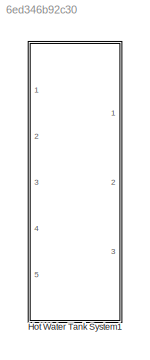
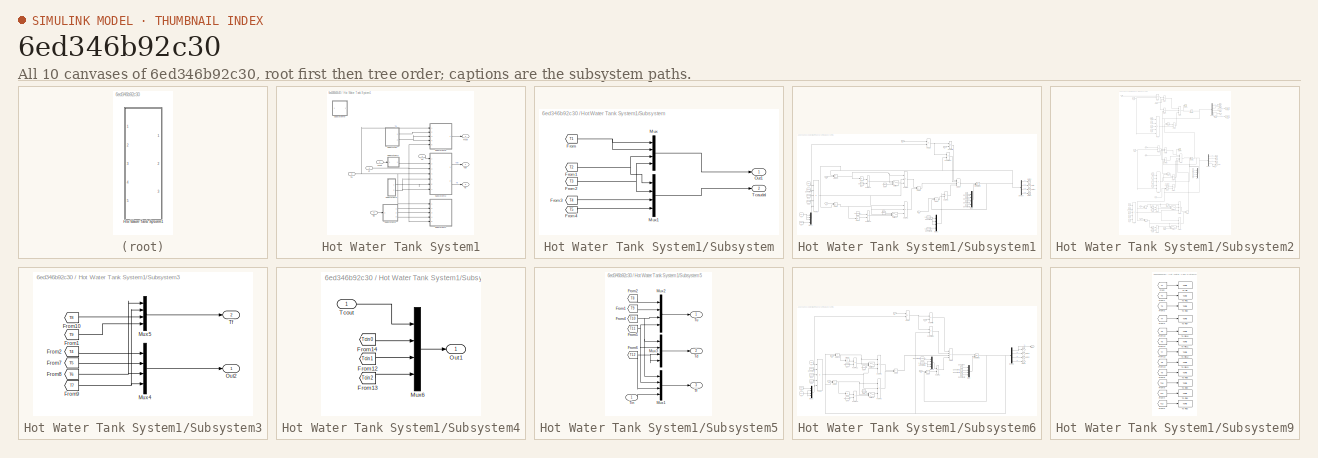
[diagram: thumbnail index - all 10 canvases of the model, root first then tree order]
MODEL slx_6ed346b92c30
KIND model
CONFIG AbsTol = auto
CONFIG EnableMultiTasking = off
CONFIG FixedStep = auto
CONFIG MaxStep = auto
CONFIG MinStep = auto
CONFIG RelTol = 1e-3
CONFIG SampleTimeConstraint = Unconstrained
CONFIG Solver = VariableStepAuto
CONFIG SolverName = VariableStepAuto
CONFIG StartTime = 0.0
CONFIG StopTime = 10.0
BLOCK [SubSystem] Hot Water Tank System1
  Ports = [5, 3]
  RequestExecContextInheritance = off
BLOCK [Inport] Hot Water Tank System1/Fc 
BLOCK [Inport] Hot Water Tank System1/Ft
  Port = 4
BLOCK [SubSystem] Hot Water Tank System1/Subsystem
  Ports = [0, 2]
  RequestExecContextInheritance = off
BLOCK [From] Hot Water Tank System1/Subsystem/From
  GotoTag = T1
  TagVisibility = global
BLOCK [From] Hot Water Tank System1/Subsystem/From1
  GotoTag = T2
  TagVisibility = global
BLOCK [From] Hot Water Tank System1/Subsystem/From2
  GotoTag = T3
  TagVisibility = global
BLOCK [From] Hot Water Tank System1/Subsystem/From3
  GotoTag = T4
  TagVisibility = global
BLOCK [From] Hot Water Tank System1/Subsystem/From4
  GotoTag = T5
  TagVisibility = global
BLOCK [Mux] Hot Water Tank System1/Subsystem/Mux
  DisplayOption = bar
  Ports = [4, 1]
BLOCK [Mux] Hot Water Tank System1/Subsystem/Mux1
  DisplayOption = bar
  Ports = [4, 1]
BLOCK [Outport] Hot Water Tank System1/Subsystem/Out1
BLOCK [Outport] Hot Water Tank System1/Subsystem/Tcaudal 
  Port = 2
BLOCK [SubSystem] Hot Water Tank System1/Subsystem1
  Ports = [5]
  RequestExecContextInheritance = off
BLOCK [Constant] Hot Water Tank System1/Subsystem1/A3
  Value = 0.32
BLOCK [Abs] Hot Water Tank System1/Subsystem1/Abs3
  SaturateOnIntegerOverflow = off
  ZeroCross = off
BLOCK [Abs] Hot Water Tank System1/Subsystem1/Abs4
  SaturateOnIntegerOverflow = off
  ZeroCross = off
BLOCK [Sum] Hot Water Tank System1/Subsystem1/Add10
  IconShape = rectangular
  Inputs = -+
  Ports = [2, 1]
BLOCK [Sum] Hot Water Tank System1/Subsystem1/Add3
  IconShape = rectangular
  Inputs = +-+-
  Ports = [4, 1]
BLOCK [Sum] Hot Water Tank System1/Subsystem1/Add4
  IconShape = rectangular
  Inputs = -+
  Ports = [2, 1]
BLOCK [Sum] Hot Water Tank System1/Subsystem1/Add8
  IconShape = rectangular
  Ports = [2, 1]
BLOCK [Sum] Hot Water Tank System1/Subsystem1/Add9
  IconShape = rectangular
  Inputs = +-
  Ports = [2, 1]
BLOCK [Constant] Hot Water Tank System1/Subsystem1/Constant
  Value = 19.9
BLOCK [Constant] Hot Water Tank System1/Subsystem1/Constant1
  Value = 19.6
BLOCK [Constant] Hot Water Tank System1/Subsystem1/Constant2
  Value = U_loss*3600*A_tank/(1000*4180*0.04)
BLOCK [Constant] Hot Water Tank System1/Subsystem1/Constant3
  Value = 19.5
BLOCK [Constant] Hot Water Tank System1/Subsystem1/Constant4
  Value = 1.5/12
BLOCK [Constant] Hot Water Tank System1/Subsystem1/Constant5
  Value = 21.2
BLOCK [Constant] Hot Water Tank System1/Subsystem1/Constant6
  Value = U_loss*3600*A_tank/(1000*4180*0.057)
BLOCK [Demux] Hot Water Tank System1/Subsystem1/Demux
  Ports = [1, 4]
BLOCK [Product] Hot Water Tank System1/Subsystem1/Fc//V*T10
  Inputs = **
  Ports = [2, 1]
BLOCK [Product] Hot Water Tank System1/Subsystem1/Fc//V*T11
  Inputs = **
  Ports = [2, 1]
BLOCK [Product] Hot Water Tank System1/Subsystem1/Fc//V*T2
  Inputs = **
  Ports = [2, 1]
BLOCK [Product] Hot Water Tank System1/Subsystem1/Fc//V*T3
  Inputs = ***
  Ports = [3, 1]
BLOCK [Product] Hot Water Tank System1/Subsystem1/Fc//V*T9
  Inputs = ***
  Ports = [3, 1]
BLOCK [Product] Hot Water Tank System1/Subsystem1/Fc//V*Ttin
  Inputs = **
  Ports = [2, 1]
BLOCK [Product] Hot Water Tank System1/Subsystem1/Fc//V*Ttout
  Inputs = **
  Ports = [2, 1]
BLOCK [Product] Hot Water Tank System1/Subsystem1/Fc//V1
  Inputs = *////
  Ports = [5, 1]
BLOCK [Product] Hot Water Tank System1/Subsystem1/Fc//V2
  Inputs = */
  Ports = [2, 1]
BLOCK [Inport] Hot Water Tank System1/Subsystem1/Ft
  Port = 5
BLOCK [Goto] Hot Water Tank System1/Subsystem1/Goto
  GotoTag = T10
  TagVisibility = global
BLOCK [Goto] Hot Water Tank System1/Subsystem1/Goto1
  GotoTag = T11
  TagVisibility = global
BLOCK [Goto] Hot Water Tank System1/Subsystem1/Goto2
  GotoTag = T12
  TagVisibility = global
BLOCK [Goto] Hot Water Tank System1/Subsystem1/Goto3
  GotoTag = T9
  TagVisibility = global
BLOCK [Integrator] Hot Water Tank System1/Subsystem1/Integrator1
  InitialCondition = 55.1
  InitialConditionSource = external
  Ports = [2, 1]
BLOCK [Mux] Hot Water Tank System1/Subsystem1/Mux
  DisplayOption = bar
  Ports = [4, 1]
BLOCK [Mux] Hot Water Tank System1/Subsystem1/Mux1
  DisplayOption = bar
  Ports = [4, 1]
BLOCK [Mux] Hot Water Tank System1/Subsystem1/Mux2
  DisplayOption = bar
  Ports = [4, 1]
BLOCK [Switch] Hot Water Tank System1/Subsystem1/Switch3
  Criteria = u2 > Threshold
  InputSameDT = off
  SaturateOnIntegerOverflow = off
  ZeroCross = off
BLOCK [Switch] Hot Water Tank System1/Subsystem1/Switch4
  Criteria = u2 > Threshold
  InputSameDT = off
  SaturateOnIntegerOverflow = off
  ZeroCross = off
BLOCK [Inport] Hot Water Tank System1/Subsystem1/Ta
BLOCK [Inport] Hot Water Tank System1/Subsystem1/Td
  Port = 3
BLOCK [Inport] Hot Water Tank System1/Subsystem1/Tf 
  Port = 4
BLOCK [Inport] Hot Water Tank System1/Subsystem1/Tu
  Port = 2
BLOCK [Constant] Hot Water Tank System1/Subsystem1/Us    5
  Value = 0.6*3600
BLOCK [Constant] Hot Water Tank System1/Subsystem1/Us    6
  Value = 0.6*3600*delt
BLOCK [Constant] Hot Water Tank System1/Subsystem1/Us    7
  Value = 0.6*3600*delt
BLOCK [Constant] Hot Water Tank System1/Subsystem1/Us    8
  Value = 0.6*3600
BLOCK [Constant] Hot Water Tank System1/Subsystem1/V1
  Value = 0.04
BLOCK [Constant] Hot Water Tank System1/Subsystem1/V4
  Value = 0.057
BLOCK [Constant] Hot Water Tank System1/Subsystem1/cp3
  Value = 4180
BLOCK [Constant] Hot Water Tank System1/Subsystem1/rho3
  Value = 1000
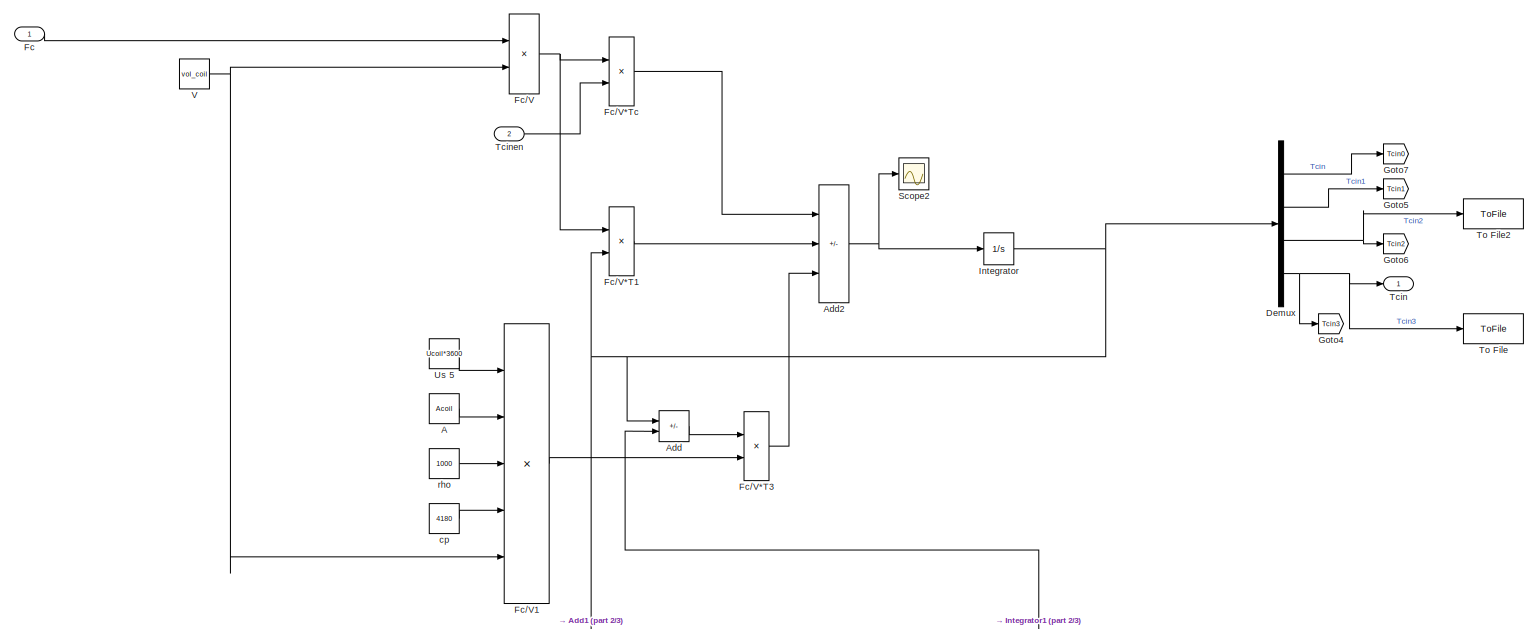
[diagram: Hot Water Tank System1/Subsystem2 - part 1/3, full width, top band]
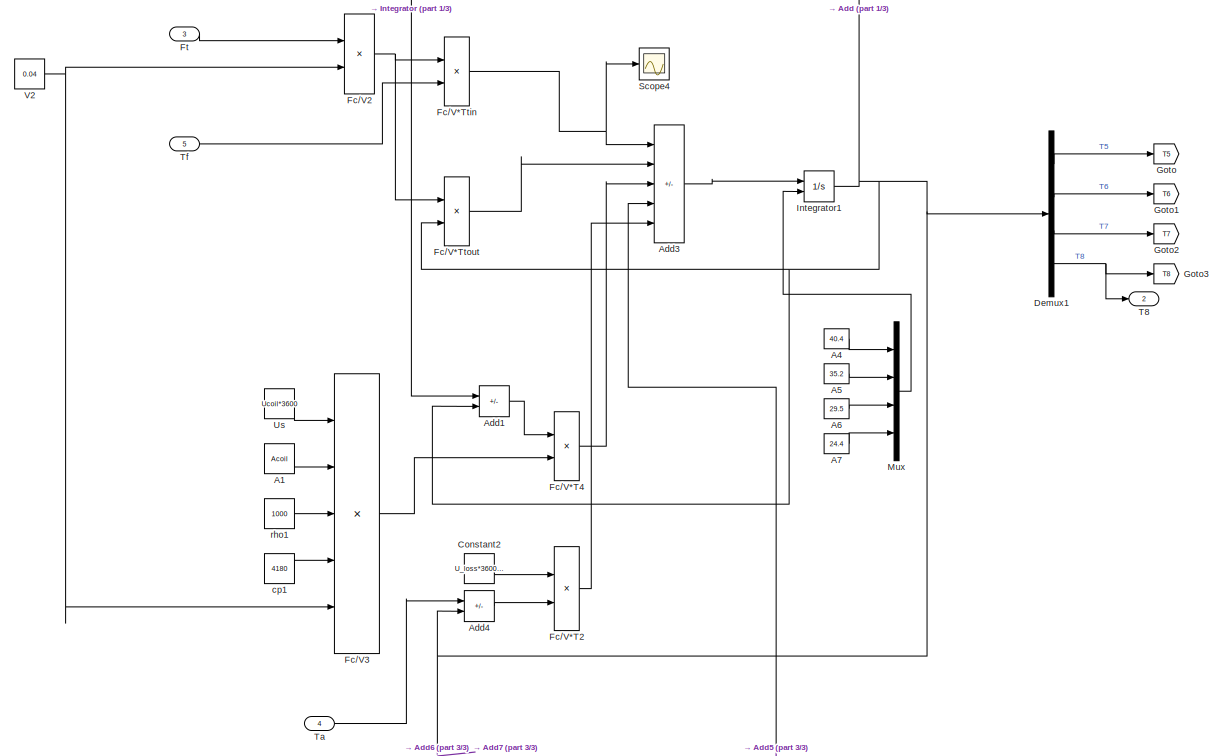
[diagram: Hot Water Tank System1/Subsystem2 - part 2/3, full width, middle band]
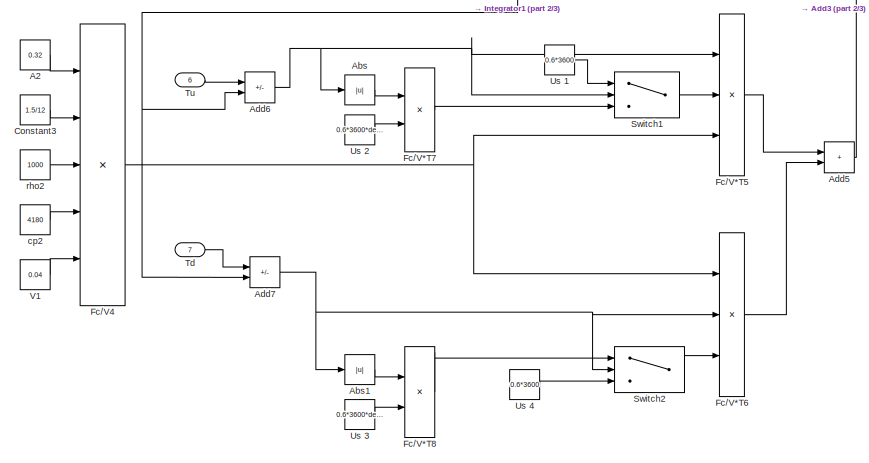
[diagram: Hot Water Tank System1/Subsystem2 - part 3/3, bottom center region]
BLOCK [SubSystem] Hot Water Tank System1/Subsystem2
  Ports = [7, 2]
  RequestExecContextInheritance = off
BLOCK [Constant] Hot Water Tank System1/Subsystem2/A
  Value = Acoil
BLOCK [Constant] Hot Water Tank System1/Subsystem2/A1
  Value = Acoil
BLOCK [Constant] Hot Water Tank System1/Subsystem2/A2
  Value = 0.32
BLOCK [Constant] Hot Water Tank System1/Subsystem2/A4
  Value = 40.4
BLOCK [Constant] Hot Water Tank System1/Subsystem2/A5
  Value = 35.2
BLOCK [Constant] Hot Water Tank System1/Subsystem2/A6
  Value = 29.5
BLOCK [Constant] Hot Water Tank System1/Subsystem2/A7
  Value = 24.4
BLOCK [Abs] Hot Water Tank System1/Subsystem2/Abs
  SaturateOnIntegerOverflow = off
  ZeroCross = off
BLOCK [Abs] Hot Water Tank System1/Subsystem2/Abs1
  SaturateOnIntegerOverflow = off
  ZeroCross = off
BLOCK [Sum] Hot Water Tank System1/Subsystem2/Add
  IconShape = rectangular
  Inputs = +-
  Ports = [2, 1]
BLOCK [Sum] Hot Water Tank System1/Subsystem2/Add1
  IconShape = rectangular
  Inputs = -+
  Ports = [2, 1]
BLOCK [Sum] Hot Water Tank System1/Subsystem2/Add2
  IconShape = rectangular
  Inputs = +--
  Ports = [3, 1]
BLOCK [Sum] Hot Water Tank System1/Subsystem2/Add3
  IconShape = rectangular
  Inputs = +--+-
  Ports = [5, 1]
BLOCK [Sum] Hot Water Tank System1/Subsystem2/Add4
  IconShape = rectangular
  Inputs = -+
  Ports = [2, 1]
BLOCK [Sum] Hot Water Tank System1/Subsystem2/Add5
  IconShape = rectangular
  Ports = [2, 1]
BLOCK [Sum] Hot Water Tank System1/Subsystem2/Add6
  IconShape = rectangular
  Inputs = +-
  Ports = [2, 1]
BLOCK [Sum] Hot Water Tank System1/Subsystem2/Add7
  IconShape = rectangular
  Inputs = +-
  Ports = [2, 1]
BLOCK [Constant] Hot Water Tank System1/Subsystem2/Constant2
  Value = U_loss*3600*A_tank/(1000*4180*0.04)
BLOCK [Constant] Hot Water Tank System1/Subsystem2/Constant3
  Value = 1.5/12
BLOCK [Demux] Hot Water Tank System1/Subsystem2/Demux
  Ports = [1, 4]
BLOCK [Demux] Hot Water Tank System1/Subsystem2/Demux1
  Ports = [1, 4]
BLOCK [Inport] Hot Water Tank System1/Subsystem2/Fc 
BLOCK [Product] Hot Water Tank System1/Subsystem2/Fc//V
  Inputs = */
  Ports = [2, 1]
BLOCK [Product] Hot Water Tank System1/Subsystem2/Fc//V*T1
  Inputs = **
  Ports = [2, 1]
BLOCK [Product] Hot Water Tank System1/Subsystem2/Fc//V*T2
  Inputs = **
  Ports = [2, 1]
BLOCK [Product] Hot Water Tank System1/Subsystem2/Fc//V*T3
  Inputs = **
  Ports = [2, 1]
BLOCK [Product] Hot Water Tank System1/Subsystem2/Fc//V*T4
  Inputs = **
  Ports = [2, 1]
BLOCK [Product] Hot Water Tank System1/Subsystem2/Fc//V*T5
  Inputs = ***
  Ports = [3, 1]
BLOCK [Product] Hot Water Tank System1/Subsystem2/Fc//V*T6
  Inputs = ***
  Ports = [3, 1]
BLOCK [Product] Hot Water Tank System1/Subsystem2/Fc//V*T7
  Inputs = **
  Ports = [2, 1]
BLOCK [Product] Hot Water Tank System1/Subsystem2/Fc//V*T8
  Inputs = **
  Ports = [2, 1]
BLOCK [Product] Hot Water Tank System1/Subsystem2/Fc//V*Tc
  Inputs = **
  Ports = [2, 1]
BLOCK [Product] Hot Water Tank System1/Subsystem2/Fc//V*Ttin
  Inputs = **
  Ports = [2, 1]
BLOCK [Product] Hot Water Tank System1/Subsystem2/Fc//V*Ttout
  Inputs = **
  Ports = [2, 1]
BLOCK [Product] Hot Water Tank System1/Subsystem2/Fc//V1
  Inputs = **///
  Ports = [5, 1]
BLOCK [Product] Hot Water Tank System1/Subsystem2/Fc//V2
  Inputs = */
  Ports = [2, 1]
BLOCK [Product] Hot Water Tank System1/Subsystem2/Fc//V3
  Inputs = **///
  Ports = [5, 1]
BLOCK [Product] Hot Water Tank System1/Subsystem2/Fc//V4
  Inputs = *////
  Ports = [5, 1]
BLOCK [Inport] Hot Water Tank System1/Subsystem2/Ft
  Port = 3
BLOCK [Goto] Hot Water Tank System1/Subsystem2/Goto
  GotoTag = T5
  TagVisibility = global
BLOCK [Goto] Hot Water Tank System1/Subsystem2/Goto1
  GotoTag = T6
  TagVisibility = global
BLOCK [Goto] Hot Water Tank System1/Subsystem2/Goto2
  GotoTag = T7
  TagVisibility = global
BLOCK [Goto] Hot Water Tank System1/Subsystem2/Goto3
  GotoTag = T8
  TagVisibility = global
BLOCK [Goto] Hot Water Tank System1/Subsystem2/Goto4
  GotoTag = Tcin3
  TagVisibility = global
BLOCK [Goto] Hot Water Tank System1/Subsystem2/Goto5
  GotoTag = Tcin1
  TagVisibility = global
BLOCK [Goto] Hot Water Tank System1/Subsystem2/Goto6
  GotoTag = Tcin2
  TagVisibility = global
BLOCK [Goto] Hot Water Tank System1/Subsystem2/Goto7
  GotoTag = Tcin0
  TagVisibility = global
BLOCK [Integrator] Hot Water Tank System1/Subsystem2/Integrator
  InitialCondition = 25.7
  Ports = [1, 1]
BLOCK [Integrator] Hot Water Tank System1/Subsystem2/Integrator1
  InitialCondition = 42.7
  InitialConditionSource = external
  Ports = [2, 1]
BLOCK [Mux] Hot Water Tank System1/Subsystem2/Mux
  DisplayOption = bar
  Ports = [4, 1]
BLOCK [Scope] Hot Water Tank System1/Subsystem2/Scope2
  Floating = off
  NumInputPorts = 1
  Ports = [1]
  ScopeSpecificationString = Simulink.scopes.TimeScopeBlockCfg('CurrentConfiguration', extmgr.ConfigurationSet(extmgr.Configuration('Core','General UI',true),extmgr.Configuration('Core','Source UI',true),extmgr.Configuration('Sources','WiredSimulink',true,'DataLoggingVariableName','ScopeData1'),extmgr.Configuration('Visuals','Time Domain',true,'SerializedDisplays',{struct('MinYLimReal','-653.65523','MaxYLimReal','818.78226','...<+1479ch>
BLOCK [Scope] Hot Water Tank System1/Subsystem2/Scope4
  Floating = off
  NumInputPorts = 1
  Ports = [1]
  ScopeSpecificationString = Simulink.scopes.TimeScopeBlockCfg('CurrentConfiguration', extmgr.ConfigurationSet(extmgr.Configuration('Core','General UI',true),extmgr.Configuration('Core','Source UI',true),extmgr.Configuration('Sources','WiredSimulink',true,'DataLoggingVariableName','ScopeData1'),extmgr.Configuration('Visuals','Time Domain',true,'SerializedDisplays',{struct('MinYLimReal','-4.39511','MaxYLimReal','39.55597','YLa...<+1489ch>
BLOCK [Switch] Hot Water Tank System1/Subsystem2/Switch1
  Criteria = u2 > Threshold
  InputSameDT = off
  SaturateOnIntegerOverflow = off
  ZeroCross = off
BLOCK [Switch] Hot Water Tank System1/Subsystem2/Switch2
  Criteria = u2 > Threshold
  InputSameDT = off
  SaturateOnIntegerOverflow = off
  ZeroCross = off
BLOCK [Outport] Hot Water Tank System1/Subsystem2/T8
  Port = 2
BLOCK [Inport] Hot Water Tank System1/Subsystem2/Ta
  Port = 4
BLOCK [Outport] Hot Water Tank System1/Subsystem2/Tcin
BLOCK [Inport] Hot Water Tank System1/Subsystem2/Tcinen 
  Port = 2
BLOCK [Inport] Hot Water Tank System1/Subsystem2/Td
  Port = 7
BLOCK [Inport] Hot Water Tank System1/Subsystem2/Tf 
  Port = 5
BLOCK [ToFile] Hot Water Tank System1/Subsystem2/To File
  Filename = Tcin_ex.mat
  MatrixName = Tcin_ex
  Ports = [1]
  SampleTime = 1
BLOCK [ToFile] Hot Water Tank System1/Subsystem2/To File2
  Filename = Tcin2_anterior.mat
  MatrixName = Tcin2_anterior
  Ports = [1]
  SampleTime = 1
BLOCK [Inport] Hot Water Tank System1/Subsystem2/Tu
  Port = 6
BLOCK [Constant] Hot Water Tank System1/Subsystem2/Us    
  Value = Ucoil*3600
BLOCK [Constant] Hot Water Tank System1/Subsystem2/Us    1
  Value = 0.6*3600
BLOCK [Constant] Hot Water Tank System1/Subsystem2/Us    2
  Value = 0.6*3600*delt
BLOCK [Constant] Hot Water Tank System1/Subsystem2/Us    3
  Value = 0.6*3600*delt
BLOCK [Constant] Hot Water Tank System1/Subsystem2/Us    4
  Value = 0.6*3600
BLOCK [Constant] Hot Water Tank System1/Subsystem2/Us    5
  Value = Ucoil*3600
BLOCK [Constant] Hot Water Tank System1/Subsystem2/V
  Value = vol_coil
BLOCK [Constant] Hot Water Tank System1/Subsystem2/V1
  Value = 0.04
BLOCK [Constant] Hot Water Tank System1/Subsystem2/V2
  Value = 0.04
BLOCK [Constant] Hot Water Tank System1/Subsystem2/cp
  Value = 4180
BLOCK [Constant] Hot Water Tank System1/Subsystem2/cp1
  Value = 4180
BLOCK [Constant] Hot Water Tank System1/Subsystem2/cp2
  Value = 4180
BLOCK [Constant] Hot Water Tank System1/Subsystem2/rho
  Value = 1000
BLOCK [Constant] Hot Water Tank System1/Subsystem2/rho1
  Value = 1000
BLOCK [Constant] Hot Water Tank System1/Subsystem2/rho2
  Value = 1000
BLOCK [SubSystem] Hot Water Tank System1/Subsystem3
  Ports = [0, 2]
  RequestExecContextInheritance = off
BLOCK [From] Hot Water Tank System1/Subsystem3/From1
  GotoTag = T9
  TagVisibility = global
BLOCK [From] Hot Water Tank System1/Subsystem3/From10
  GotoTag = T8
  TagVisibility = global
BLOCK [From] Hot Water Tank System1/Subsystem3/From2
  GotoTag = T4
  TagVisibility = global
BLOCK [From] Hot Water Tank System1/Subsystem3/From7
  GotoTag = T5
  TagVisibility = global
BLOCK [From] Hot Water Tank System1/Subsystem3/From8
  GotoTag = T6
  TagVisibility = global
BLOCK [From] Hot Water Tank System1/Subsystem3/From9
  GotoTag = T7
  TagVisibility = global
BLOCK [Mux] Hot Water Tank System1/Subsystem3/Mux4
  DisplayOption = bar
  Ports = [4, 1]
BLOCK [Mux] Hot Water Tank System1/Subsystem3/Mux5
  DisplayOption = bar
  Ports = [4, 1]
BLOCK [Outport] Hot Water Tank System1/Subsystem3/Out2
BLOCK [Outport] Hot Water Tank System1/Subsystem3/Tf 
  Port = 2
BLOCK [SubSystem] Hot Water Tank System1/Subsystem4
  Ports = [1, 1]
  RequestExecContextInheritance = off
BLOCK [From] Hot Water Tank System1/Subsystem4/From12
  GotoTag = Tcin1
  TagVisibility = global
BLOCK [From] Hot Water Tank System1/Subsystem4/From13
  GotoTag = Tcin2
  TagVisibility = global
BLOCK [From] Hot Water Tank System1/Subsystem4/From14
  GotoTag = Tcin0
  TagVisibility = global
BLOCK [Mux] Hot Water Tank System1/Subsystem4/Mux6
  DisplayOption = bar
  Ports = [4, 1]
BLOCK [Outport] Hot Water Tank System1/Subsystem4/Out1
BLOCK [Inport] Hot Water Tank System1/Subsystem4/Tcout 
BLOCK [SubSystem] Hot Water Tank System1/Subsystem5
  Ports = [1, 3]
  RequestExecContextInheritance = off
BLOCK [From] Hot Water Tank System1/Subsystem5/From1
  GotoTag = T9
  TagVisibility = global
BLOCK [From] Hot Water Tank System1/Subsystem5/From2
  GotoTag = T8
  TagVisibility = global
BLOCK [From] Hot Water Tank System1/Subsystem5/From4
  GotoTag = T10
  TagVisibility = global
BLOCK [From] Hot Water Tank System1/Subsystem5/From5
  GotoTag = T11
  TagVisibility = global
BLOCK [From] Hot Water Tank System1/Subsystem5/From6
  GotoTag = T12
  TagVisibility = global
BLOCK [Mux] Hot Water Tank System1/Subsystem5/Mux1
  DisplayOption = bar
  Ports = [4, 1]
BLOCK [Mux] Hot Water Tank System1/Subsystem5/Mux2
  DisplayOption = bar
  Ports = [4, 1]
BLOCK [Mux] Hot Water Tank System1/Subsystem5/Mux3
  DisplayOption = bar
  Ports = [4, 1]
BLOCK [Outport] Hot Water Tank System1/Subsystem5/Td
  Port = 2
BLOCK [Outport] Hot Water Tank System1/Subsystem5/Tf 
  Port = 3
BLOCK [Inport] Hot Water Tank System1/Subsystem5/Tin
BLOCK [Outport] Hot Water Tank System1/Subsystem5/Tu
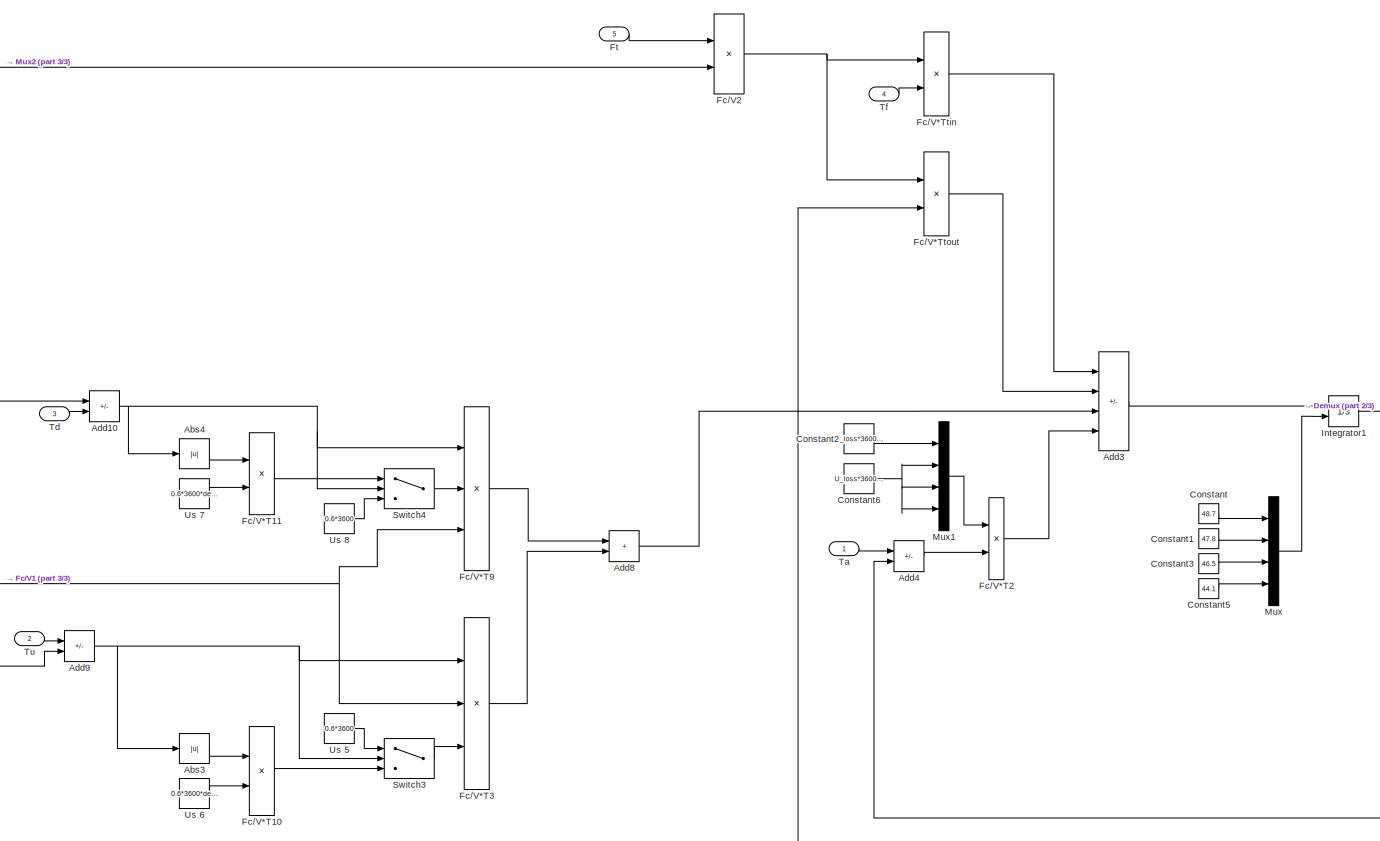
[diagram: Hot Water Tank System1/Subsystem6 - part 1/3, center side, full height]
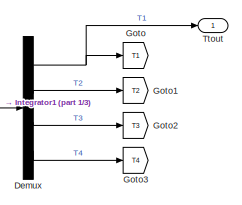
[diagram: Hot Water Tank System1/Subsystem6 - part 2/3, middle right region]
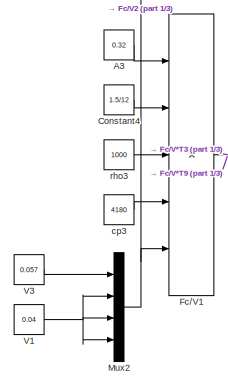
[diagram: Hot Water Tank System1/Subsystem6 - part 3/3, middle left region]
BLOCK [SubSystem] Hot Water Tank System1/Subsystem6
  Ports = [5, 1]
  RequestExecContextInheritance = off
BLOCK [Constant] Hot Water Tank System1/Subsystem6/A3
  Value = 0.32
BLOCK [Abs] Hot Water Tank System1/Subsystem6/Abs3
  SaturateOnIntegerOverflow = off
  ZeroCross = off
BLOCK [Abs] Hot Water Tank System1/Subsystem6/Abs4
  SaturateOnIntegerOverflow = off
  ZeroCross = off
BLOCK [Sum] Hot Water Tank System1/Subsystem6/Add10
  IconShape = rectangular
  Inputs = -+
  Ports = [2, 1]
BLOCK [Sum] Hot Water Tank System1/Subsystem6/Add3
  IconShape = rectangular
  Inputs = +-+-
  Ports = [4, 1]
BLOCK [Sum] Hot Water Tank System1/Subsystem6/Add4
  IconShape = rectangular
  Inputs = -+
  Ports = [2, 1]
BLOCK [Sum] Hot Water Tank System1/Subsystem6/Add8
  IconShape = rectangular
  Ports = [2, 1]
BLOCK [Sum] Hot Water Tank System1/Subsystem6/Add9
  IconShape = rectangular
  Inputs = +-
  Ports = [2, 1]
BLOCK [Constant] Hot Water Tank System1/Subsystem6/Constant
  Value = 48.7
BLOCK [Constant] Hot Water Tank System1/Subsystem6/Constant1
  Value = 47.8
BLOCK [Constant] Hot Water Tank System1/Subsystem6/Constant2
  Value = U_loss*3600*(A_tank+0.67)/(1000*4180*0.057)
BLOCK [Constant] Hot Water Tank System1/Subsystem6/Constant3
  Value = 46.5
BLOCK [Constant] Hot Water Tank System1/Subsystem6/Constant4
  Value = 1.5/12
BLOCK [Constant] Hot Water Tank System1/Subsystem6/Constant5
  Value = 44.1
BLOCK [Constant] Hot Water Tank System1/Subsystem6/Constant6
  Value = U_loss*3600*A_tank/(1000*4180*0.04)
BLOCK [Demux] Hot Water Tank System1/Subsystem6/Demux
  Ports = [1, 4]
BLOCK [Product] Hot Water Tank System1/Subsystem6/Fc//V*T10
  Inputs = **
  Ports = [2, 1]
BLOCK [Product] Hot Water Tank System1/Subsystem6/Fc//V*T11
  Inputs = **
  Ports = [2, 1]
BLOCK [Product] Hot Water Tank System1/Subsystem6/Fc//V*T2
  Inputs = **
  Ports = [2, 1]
BLOCK [Product] Hot Water Tank System1/Subsystem6/Fc//V*T3
  Inputs = ***
  Ports = [3, 1]
BLOCK [Product] Hot Water Tank System1/Subsystem6/Fc//V*T9
  Inputs = ***
  Ports = [3, 1]
BLOCK [Product] Hot Water Tank System1/Subsystem6/Fc//V*Ttin
  Inputs = **
  Ports = [2, 1]
BLOCK [Product] Hot Water Tank System1/Subsystem6/Fc//V*Ttout
  Inputs = **
  Ports = [2, 1]
BLOCK [Product] Hot Water Tank System1/Subsystem6/Fc//V1
  Inputs = *////
  Ports = [5, 1]
BLOCK [Product] Hot Water Tank System1/Subsystem6/Fc//V2
  Inputs = */
  Ports = [2, 1]
BLOCK [Inport] Hot Water Tank System1/Subsystem6/Ft
  Port = 5
BLOCK [Goto] Hot Water Tank System1/Subsystem6/Goto
  GotoTag = T1
  TagVisibility = global
BLOCK [Goto] Hot Water Tank System1/Subsystem6/Goto1
  GotoTag = T2
  TagVisibility = global
BLOCK [Goto] Hot Water Tank System1/Subsystem6/Goto2
  GotoTag = T3
  TagVisibility = global
BLOCK [Goto] Hot Water Tank System1/Subsystem6/Goto3
  GotoTag = T4
  TagVisibility = global
BLOCK [Integrator] Hot Water Tank System1/Subsystem6/Integrator1
  InitialCondition = 55.1
  InitialConditionSource = external
  Ports = [2, 1]
BLOCK [Mux] Hot Water Tank System1/Subsystem6/Mux
  DisplayOption = bar
  Ports = [4, 1]
BLOCK [Mux] Hot Water Tank System1/Subsystem6/Mux1
  DisplayOption = bar
  Ports = [4, 1]
BLOCK [Mux] Hot Water Tank System1/Subsystem6/Mux2
  DisplayOption = bar
  Ports = [4, 1]
BLOCK [Switch] Hot Water Tank System1/Subsystem6/Switch3
  Criteria = u2 > Threshold
  InputSameDT = off
  SaturateOnIntegerOverflow = off
  ZeroCross = off
BLOCK [Switch] Hot Water Tank System1/Subsystem6/Switch4
  Criteria = u2 > Threshold
  InputSameDT = off
  SaturateOnIntegerOverflow = off
  ZeroCross = off
BLOCK [Inport] Hot Water Tank System1/Subsystem6/Ta
BLOCK [Inport] Hot Water Tank System1/Subsystem6/Td
  Port = 3
BLOCK [Inport] Hot Water Tank System1/Subsystem6/Tf 
  Port = 4
BLOCK [Outport] Hot Water Tank System1/Subsystem6/Ttout
BLOCK [Inport] Hot Water Tank System1/Subsystem6/Tu
  Port = 2
BLOCK [Constant] Hot Water Tank System1/Subsystem6/Us    5
  Value = 0.6*3600
BLOCK [Constant] Hot Water Tank System1/Subsystem6/Us    6
  Value = 0.6*3600*delt
BLOCK [Constant] Hot Water Tank System1/Subsystem6/Us    7
  Value = 0.6*3600*delt
BLOCK [Constant] Hot Water Tank System1/Subsystem6/Us    8
  Value = 0.6*3600
BLOCK [Constant] Hot Water Tank System1/Subsystem6/V1
  Value = 0.04
BLOCK [Constant] Hot Water Tank System1/Subsystem6/V3
  Value = 0.057
BLOCK [Constant] Hot Water Tank System1/Subsystem6/cp3
  Value = 4180
BLOCK [Constant] Hot Water Tank System1/Subsystem6/rho3
  Value = 1000
BLOCK [SubSystem] Hot Water Tank System1/Subsystem9
  Ports = []
  RequestExecContextInheritance = off
BLOCK [From] Hot Water Tank System1/Subsystem9/From
  GotoTag = T1
  TagVisibility = global
BLOCK [From] Hot Water Tank System1/Subsystem9/From1
  GotoTag = T2
  TagVisibility = global
BLOCK [From] Hot Water Tank System1/Subsystem9/From10
  GotoTag = T5
  TagVisibility = global
BLOCK [From] Hot Water Tank System1/Subsystem9/From11
  GotoTag = T6
  TagVisibility = global
BLOCK [From] Hot Water Tank System1/Subsystem9/From12
  GotoTag = T7
  TagVisibility = global
BLOCK [From] Hot Water Tank System1/Subsystem9/From13
  GotoTag = T8
  TagVisibility = global
BLOCK [From] Hot Water Tank System1/Subsystem9/From2
  GotoTag = T3
  TagVisibility = global
BLOCK [From] Hot Water Tank System1/Subsystem9/From3
  GotoTag = T4
  TagVisibility = global
BLOCK [From] Hot Water Tank System1/Subsystem9/From4
  GotoTag = T11
  TagVisibility = global
BLOCK [From] Hot Water Tank System1/Subsystem9/From5
  GotoTag = T12
  TagVisibility = global
BLOCK [From] Hot Water Tank System1/Subsystem9/From8
  GotoTag = T9
  TagVisibility = global
BLOCK [From] Hot Water Tank System1/Subsystem9/From9
  GotoTag = T10
  TagVisibility = global
BLOCK [ToFile] Hot Water Tank System1/Subsystem9/To File
  Filename = T1.mat
  MatrixName = T1
  Ports = [1]
  SampleTime = 1
BLOCK [ToFile] Hot Water Tank System1/Subsystem9/To File1
  Filename = T2.mat
  MatrixName = T2
  Ports = [1]
  SampleTime = 1
BLOCK [ToFile] Hot Water Tank System1/Subsystem9/To File10
  Filename = T5.mat
  MatrixName = T5
  Ports = [1]
  SampleTime = 1
BLOCK [ToFile] Hot Water Tank System1/Subsystem9/To File11
  Filename = T6.mat
  MatrixName = T6
  Ports = [1]
  SampleTime = 1
BLOCK [ToFile] Hot Water Tank System1/Subsystem9/To File12
  Filename = T7.mat
  MatrixName = T7
  Ports = [1]
  SampleTime = 1
BLOCK [ToFile] Hot Water Tank System1/Subsystem9/To File13
  Filename = T8.mat
  MatrixName = T8
  Ports = [1]
  SampleTime = 1
BLOCK [ToFile] Hot Water Tank System1/Subsystem9/To File2
  Filename = T3.mat
  MatrixName = T3
  Ports = [1]
  SampleTime = 1
BLOCK [ToFile] Hot Water Tank System1/Subsystem9/To File3
  Filename = T12.mat
  MatrixName = T12
  Ports = [1]
  SampleTime = 1
BLOCK [ToFile] Hot Water Tank System1/Subsystem9/To File6
  Filename = T11.mat
  MatrixName = T11
  Ports = [1]
  SampleTime = 1
BLOCK [ToFile] Hot Water Tank System1/Subsystem9/To File7
  Filename = T4.mat
  MatrixName = T4
  Ports = [1]
  SampleTime = 1
BLOCK [ToFile] Hot Water Tank System1/Subsystem9/To File8
  Filename = T9.mat
  MatrixName = T9
  Ports = [1]
  SampleTime = 1
BLOCK [ToFile] Hot Water Tank System1/Subsystem9/To File9
  Filename = T10.mat
  MatrixName = T10
  Ports = [1]
  SampleTime = 1
BLOCK [Outport] Hot Water Tank System1/T8
  Port = 3
BLOCK [Inport] Hot Water Tank System1/Ta
  Port = 3
BLOCK [Outport] Hot Water Tank System1/Tcin 
BLOCK [Inport] Hot Water Tank System1/Tcout 
  Port = 2
BLOCK [Inport] Hot Water Tank System1/Tin 
  Port = 5
BLOCK [Outport] Hot Water Tank System1/Ttout
  Port = 2
LINE Hot Water Tank System1/Fc :1 -> Hot Water Tank System1/Subsystem2:1
NET Hot Water Tank System1/Ft:1 -> Hot Water Tank System1/Subsystem1:5, Hot Water Tank System1/Subsystem2:3, Hot Water Tank System1/Subsystem6:5
NET Hot Water Tank System1/Subsystem/From1:1 -> Hot Water Tank System1/Subsystem/Mux1:1, Hot Water Tank System1/Subsystem/Mux:3
NET Hot Water Tank System1/Subsystem/From2:1 -> Hot Water Tank System1/Subsystem/Mux1:2, Hot Water Tank System1/Subsystem/Mux:4
LINE Hot Water Tank System1/Subsystem/From3:1 -> Hot Water Tank System1/Subsystem/Mux1:3
LINE Hot Water Tank System1/Subsystem/From4:1 -> Hot Water Tank System1/Subsystem/Mux1:4
NET Hot Water Tank System1/Subsystem/From:1 -> Hot Water Tank System1/Subsystem/Mux:1, Hot Water Tank System1/Subsystem/Mux:2
LINE Hot Water Tank System1/Subsystem/Mux1:1 -> Hot Water Tank System1/Subsystem/Tcaudal :1
LINE Hot Water Tank System1/Subsystem/Mux:1 -> Hot Water Tank System1/Subsystem/Out1:1
LINE Hot Water Tank System1/Subsystem1/A3:1 -> Hot Water Tank System1/Subsystem1/Fc//V1:1
LINE Hot Water Tank System1/Subsystem1/Abs3:1 -> Hot Water Tank System1/Subsystem1/Fc//V*T10:2
LINE Hot Water Tank System1/Subsystem1/Abs4:1 -> Hot Water Tank System1/Subsystem1/Fc//V*T11:1
NET Hot Water Tank System1/Subsystem1/Add10:1 -> Hot Water Tank System1/Subsystem1/Abs4:1, Hot Water Tank System1/Subsystem1/Fc//V*T9:1, Hot Water Tank System1/Subsystem1/Switch4:2
LINE Hot Water Tank System1/Subsystem1/Add3:1 -> Hot Water Tank System1/Subsystem1/Integrator1:1
LINE Hot Water Tank System1/Subsystem1/Add4:1 -> Hot Water Tank System1/Subsystem1/Fc//V*T2:2
LINE Hot Water Tank System1/Subsystem1/Add8:1 -> Hot Water Tank System1/Subsystem1/Add3:3
NET Hot Water Tank System1/Subsystem1/Add9:1 -> Hot Water Tank System1/Subsystem1/Abs3:1, Hot Water Tank System1/Subsystem1/Fc//V*T3:2, Hot Water Tank System1/Subsystem1/Switch3:2
LINE Hot Water Tank System1/Subsystem1/Constant1:1 -> Hot Water Tank System1/Subsystem1/Mux:3
NET Hot Water Tank System1/Subsystem1/Constant2:1 -> Hot Water Tank System1/Subsystem1/Mux1:1, Hot Water Tank System1/Subsystem1/Mux1:2, Hot Water Tank System1/Subsystem1/Mux1:3
LINE Hot Water Tank System1/Subsystem1/Constant3:1 -> Hot Water Tank System1/Subsystem1/Mux:4
LINE Hot Water Tank System1/Subsystem1/Constant4:1 -> Hot Water Tank System1/Subsystem1/Fc//V1:2
LINE Hot Water Tank System1/Subsystem1/Constant5:1 -> Hot Water Tank System1/Subsystem1/Mux:1
LINE Hot Water Tank System1/Subsystem1/Constant6:1 -> Hot Water Tank System1/Subsystem1/Mux1:4
LINE Hot Water Tank System1/Subsystem1/Constant:1 -> Hot Water Tank System1/Subsystem1/Mux:2
LINE Hot Water Tank System1/Subsystem1/Demux:1 -> Hot Water Tank System1/Subsystem1/Goto3:1
LINE Hot Water Tank System1/Subsystem1/Demux:2 -> Hot Water Tank System1/Subsystem1/Goto:1
LINE Hot Water Tank System1/Subsystem1/Demux:3 -> Hot Water Tank System1/Subsystem1/Goto1:1
LINE Hot Water Tank System1/Subsystem1/Demux:4 -> Hot Water Tank System1/Subsystem1/Goto2:1
LINE Hot Water Tank System1/Subsystem1/Fc//V*T10:1 -> Hot Water Tank System1/Subsystem1/Switch3:3
LINE Hot Water Tank System1/Subsystem1/Fc//V*T11:1 -> Hot Water Tank System1/Subsystem1/Switch4:1
LINE Hot Water Tank System1/Subsystem1/Fc//V*T2:1 -> Hot Water Tank System1/Subsystem1/Add3:4
LINE Hot Water Tank System1/Subsystem1/Fc//V*T3:1 -> Hot Water Tank System1/Subsystem1/Add8:2
LINE Hot Water Tank System1/Subsystem1/Fc//V*T9:1 -> Hot Water Tank System1/Subsystem1/Add8:1
LINE Hot Water Tank System1/Subsystem1/Fc//V*Ttin:1 -> Hot Water Tank System1/Subsystem1/Add3:1
LINE Hot Water Tank System1/Subsystem1/Fc//V*Ttout:1 -> Hot Water Tank System1/Subsystem1/Add3:2
NET Hot Water Tank System1/Subsystem1/Fc//V1:1 -> Hot Water Tank System1/Subsystem1/Fc//V*T3:1, Hot Water Tank System1/Subsystem1/Fc//V*T9:3
NET Hot Water Tank System1/Subsystem1/Fc//V2:1 -> Hot Water Tank System1/Subsystem1/Fc//V*Ttin:1, Hot Water Tank System1/Subsystem1/Fc//V*Ttout:1
LINE Hot Water Tank System1/Subsystem1/Ft:1 -> Hot Water Tank System1/Subsystem1/Fc//V2:1
NET Hot Water Tank System1/Subsystem1/Integrator1:1 -> Hot Water Tank System1/Subsystem1/Add10:1, Hot Water Tank System1/Subsystem1/Add4:2, Hot Water Tank System1/Subsystem1/Add9:2, Hot Water Tank System1/Subsystem1/Demux:1, Hot Water Tank System1/Subsystem1/Fc//V*Ttout:2
LINE Hot Water Tank System1/Subsystem1/Mux1:1 -> Hot Water Tank System1/Subsystem1/Fc//V*T2:1
NET Hot Water Tank System1/Subsystem1/Mux2:1 -> Hot Water Tank System1/Subsystem1/Fc//V1:5, Hot Water Tank System1/Subsystem1/Fc//V2:2
LINE Hot Water Tank System1/Subsystem1/Mux:1 -> Hot Water Tank System1/Subsystem1/Integrator1:2
LINE Hot Water Tank System1/Subsystem1/Switch3:1 -> Hot Water Tank System1/Subsystem1/Fc//V*T3:3
LINE Hot Water Tank System1/Subsystem1/Switch4:1 -> Hot Water Tank System1/Subsystem1/Fc//V*T9:2
LINE Hot Water Tank System1/Subsystem1/Ta:1 -> Hot Water Tank System1/Subsystem1/Add4:1
LINE Hot Water Tank System1/Subsystem1/Td:1 -> Hot Water Tank System1/Subsystem1/Add10:2
LINE Hot Water Tank System1/Subsystem1/Tf :1 -> Hot Water Tank System1/Subsystem1/Fc//V*Ttin:2
LINE Hot Water Tank System1/Subsystem1/Tu:1 -> Hot Water Tank System1/Subsystem1/Add9:1
LINE Hot Water Tank System1/Subsystem1/Us    5:1 -> Hot Water Tank System1/Subsystem1/Switch3:1
LINE Hot Water Tank System1/Subsystem1/Us    6:1 -> Hot Water Tank System1/Subsystem1/Fc//V*T10:1
LINE Hot Water Tank System1/Subsystem1/Us    7:1 -> Hot Water Tank System1/Subsystem1/Fc//V*T11:2
LINE Hot Water Tank System1/Subsystem1/Us    8:1 -> Hot Water Tank System1/Subsystem1/Switch4:3
NET Hot Water Tank System1/Subsystem1/V1:1 -> Hot Water Tank System1/Subsystem1/Mux2:1, Hot Water Tank System1/Subsystem1/Mux2:2, Hot Water Tank System1/Subsystem1/Mux2:3
LINE Hot Water Tank System1/Subsystem1/V4:1 -> Hot Water Tank System1/Subsystem1/Mux2:4
LINE Hot Water Tank System1/Subsystem1/cp3:1 -> Hot Water Tank System1/Subsystem1/Fc//V1:4
LINE Hot Water Tank System1/Subsystem1/rho3:1 -> Hot Water Tank System1/Subsystem1/Fc//V1:3
LINE Hot Water Tank System1/Subsystem2/A1:1 -> Hot Water Tank System1/Subsystem2/Fc//V3:2
LINE Hot Water Tank System1/Subsystem2/A2:1 -> Hot Water Tank System1/Subsystem2/Fc//V4:1
LINE Hot Water Tank System1/Subsystem2/A4:1 -> Hot Water Tank System1/Subsystem2/Mux:1
LINE Hot Water Tank System1/Subsystem2/A5:1 -> Hot Water Tank System1/Subsystem2/Mux:2
LINE Hot Water Tank System1/Subsystem2/A6:1 -> Hot Water Tank System1/Subsystem2/Mux:3
LINE Hot Water Tank System1/Subsystem2/A7:1 -> Hot Water Tank System1/Subsystem2/Mux:4
LINE Hot Water Tank System1/Subsystem2/A:1 -> Hot Water Tank System1/Subsystem2/Fc//V1:2
LINE Hot Water Tank System1/Subsystem2/Abs1:1 -> Hot Water Tank System1/Subsystem2/Fc//V*T8:1
LINE Hot Water Tank System1/Subsystem2/Abs:1 -> Hot Water Tank System1/Subsystem2/Fc//V*T7:1
LINE Hot Water Tank System1/Subsystem2/Add1:1 -> Hot Water Tank System1/Subsystem2/Fc//V*T4:1
NET Hot Water Tank System1/Subsystem2/Add2:1 -> Hot Water Tank System1/Subsystem2/Integrator:1, Hot Water Tank System1/Subsystem2/Scope2:1
LINE Hot Water Tank System1/Subsystem2/Add3:1 -> Hot Water Tank System1/Subsystem2/Integrator1:1
LINE Hot Water Tank System1/Subsystem2/Add4:1 -> Hot Water Tank System1/Subsystem2/Fc//V*T2:2
LINE Hot Water Tank System1/Subsystem2/Add5:1 -> Hot Water Tank System1/Subsystem2/Add3:4
NET Hot Water Tank System1/Subsystem2/Add6:1 -> Hot Water Tank System1/Subsystem2/Abs:1, Hot Water Tank System1/Subsystem2/Fc//V*T5:1, Hot Water Tank System1/Subsystem2/Switch1:2
NET Hot Water Tank System1/Subsystem2/Add7:1 -> Hot Water Tank System1/Subsystem2/Abs1:1, Hot Water Tank System1/Subsystem2/Fc//V*T6:2, Hot Water Tank System1/Subsystem2/Switch2:2
LINE Hot Water Tank System1/Subsystem2/Add:1 -> Hot Water Tank System1/Subsystem2/Fc//V*T3:1
LINE Hot Water Tank System1/Subsystem2/Constant2:1 -> Hot Water Tank System1/Subsystem2/Fc//V*T2:1
LINE Hot Water Tank System1/Subsystem2/Constant3:1 -> Hot Water Tank System1/Subsystem2/Fc//V4:2
LINE Hot Water Tank System1/Subsystem2/Demux1:1 -> Hot Water Tank System1/Subsystem2/Goto:1
LINE Hot Water Tank System1/Subsystem2/Demux1:2 -> Hot Water Tank System1/Subsystem2/Goto1:1
LINE Hot Water Tank System1/Subsystem2/Demux1:3 -> Hot Water Tank System1/Subsystem2/Goto2:1
NET Hot Water Tank System1/Subsystem2/Demux1:4 -> Hot Water Tank System1/Subsystem2/Goto3:1, Hot Water Tank System1/Subsystem2/T8:1
LINE Hot Water Tank System1/Subsystem2/Demux:1 -> Hot Water Tank System1/Subsystem2/Goto7:1
LINE Hot Water Tank System1/Subsystem2/Demux:2 -> Hot Water Tank System1/Subsystem2/Goto5:1
NET Hot Water Tank System1/Subsystem2/Demux:3 -> Hot Water Tank System1/Subsystem2/Goto6:1, Hot Water Tank System1/Subsystem2/To File2:1
NET Hot Water Tank System1/Subsystem2/Demux:4 -> Hot Water Tank System1/Subsystem2/Goto4:1, Hot Water Tank System1/Subsystem2/Tcin:1, Hot Water Tank System1/Subsystem2/To File:1
LINE Hot Water Tank System1/Subsystem2/Fc :1 -> Hot Water Tank System1/Subsystem2/Fc//V:1
LINE Hot Water Tank System1/Subsystem2/Fc//V*T1:1 -> Hot Water Tank System1/Subsystem2/Add2:2
LINE Hot Water Tank System1/Subsystem2/Fc//V*T2:1 -> Hot Water Tank System1/Subsystem2/Add3:5
LINE Hot Water Tank System1/Subsystem2/Fc//V*T3:1 -> Hot Water Tank System1/Subsystem2/Add2:3
LINE Hot Water Tank System1/Subsystem2/Fc//V*T4:1 -> Hot Water Tank System1/Subsystem2/Add3:3
LINE Hot Water Tank System1/Subsystem2/Fc//V*T5:1 -> Hot Water Tank System1/Subsystem2/Add5:1
LINE Hot Water Tank System1/Subsystem2/Fc//V*T6:1 -> Hot Water Tank System1/Subsystem2/Add5:2
LINE Hot Water Tank System1/Subsystem2/Fc//V*T7:1 -> Hot Water Tank System1/Subsystem2/Switch1:3
LINE Hot Water Tank System1/Subsystem2/Fc//V*T8:1 -> Hot Water Tank System1/Subsystem2/Switch2:1
LINE Hot Water Tank System1/Subsystem2/Fc//V*Tc:1 -> Hot Water Tank System1/Subsystem2/Add2:1
NET Hot Water Tank System1/Subsystem2/Fc//V*Ttin:1 -> Hot Water Tank System1/Subsystem2/Add3:1, Hot Water Tank System1/Subsystem2/Scope4:1
LINE Hot Water Tank System1/Subsystem2/Fc//V*Ttout:1 -> Hot Water Tank System1/Subsystem2/Add3:2
LINE Hot Water Tank System1/Subsystem2/Fc//V1:1 -> Hot Water Tank System1/Subsystem2/Fc//V*T3:2
NET Hot Water Tank System1/Subsystem2/Fc//V2:1 -> Hot Water Tank System1/Subsystem2/Fc//V*Ttin:1, Hot Water Tank System1/Subsystem2/Fc//V*Ttout:1
LINE Hot Water Tank System1/Subsystem2/Fc//V3:1 -> Hot Water Tank System1/Subsystem2/Fc//V*T4:2
NET Hot Water Tank System1/Subsystem2/Fc//V4:1 -> Hot Water Tank System1/Subsystem2/Fc//V*T5:3, Hot Water Tank System1/Subsystem2/Fc//V*T6:1
NET Hot Water Tank System1/Subsystem2/Fc//V:1 -> Hot Water Tank System1/Subsystem2/Fc//V*T1:1, Hot Water Tank System1/Subsystem2/Fc//V*Tc:1
LINE Hot Water Tank System1/Subsystem2/Ft:1 -> Hot Water Tank System1/Subsystem2/Fc//V2:1
NET Hot Water Tank System1/Subsystem2/Integrator1:1 -> Hot Water Tank System1/Subsystem2/Add1:2, Hot Water Tank System1/Subsystem2/Add4:2, Hot Water Tank System1/Subsystem2/Add6:2, Hot Water Tank System1/Subsystem2/Add7:2, Hot Water Tank System1/Subsystem2/Add:2, Hot Water Tank System1/Subsystem2/Demux1:1, Hot Water Tank System1/Subsystem2/Fc//V*Ttout:2
NET Hot Water Tank System1/Subsystem2/Integrator:1 -> Hot Water Tank System1/Subsystem2/Add1:1, Hot Water Tank System1/Subsystem2/Add:1, Hot Water Tank System1/Subsystem2/Demux:1, Hot Water Tank System1/Subsystem2/Fc//V*T1:2
LINE Hot Water Tank System1/Subsystem2/Mux:1 -> Hot Water Tank System1/Subsystem2/Integrator1:2
LINE Hot Water Tank System1/Subsystem2/Switch1:1 -> Hot Water Tank System1/Subsystem2/Fc//V*T5:2
LINE Hot Water Tank System1/Subsystem2/Switch2:1 -> Hot Water Tank System1/Subsystem2/Fc//V*T6:3
LINE Hot Water Tank System1/Subsystem2/Ta:1 -> Hot Water Tank System1/Subsystem2/Add4:1
LINE Hot Water Tank System1/Subsystem2/Tcinen :1 -> Hot Water Tank System1/Subsystem2/Fc//V*Tc:2
LINE Hot Water Tank System1/Subsystem2/Td:1 -> Hot Water Tank System1/Subsystem2/Add7:1
LINE Hot Water Tank System1/Subsystem2/Tf :1 -> Hot Water Tank System1/Subsystem2/Fc//V*Ttin:2
LINE Hot Water Tank System1/Subsystem2/Tu:1 -> Hot Water Tank System1/Subsystem2/Add6:1
LINE Hot Water Tank System1/Subsystem2/Us    1:1 -> Hot Water Tank System1/Subsystem2/Switch1:1
LINE Hot Water Tank System1/Subsystem2/Us    2:1 -> Hot Water Tank System1/Subsystem2/Fc//V*T7:2
LINE Hot Water Tank System1/Subsystem2/Us    3:1 -> Hot Water Tank System1/Subsystem2/Fc//V*T8:2
LINE Hot Water Tank System1/Subsystem2/Us    4:1 -> Hot Water Tank System1/Subsystem2/Switch2:3
LINE Hot Water Tank System1/Subsystem2/Us    5:1 -> Hot Water Tank System1/Subsystem2/Fc//V1:1
LINE Hot Water Tank System1/Subsystem2/Us    :1 -> Hot Water Tank System1/Subsystem2/Fc//V3:1
LINE Hot Water Tank System1/Subsystem2/V1:1 -> Hot Water Tank System1/Subsystem2/Fc//V4:5
NET Hot Water Tank System1/Subsystem2/V2:1 -> Hot Water Tank System1/Subsystem2/Fc//V2:2, Hot Water Tank System1/Subsystem2/Fc//V3:5
NET Hot Water Tank System1/Subsystem2/V:1 -> Hot Water Tank System1/Subsystem2/Fc//V1:5, Hot Water Tank System1/Subsystem2/Fc//V:2
LINE Hot Water Tank System1/Subsystem2/cp1:1 -> Hot Water Tank System1/Subsystem2/Fc//V3:4
LINE Hot Water Tank System1/Subsystem2/cp2:1 -> Hot Water Tank System1/Subsystem2/Fc//V4:4
LINE Hot Water Tank System1/Subsystem2/cp:1 -> Hot Water Tank System1/Subsystem2/Fc//V1:4
LINE Hot Water Tank System1/Subsystem2/rho1:1 -> Hot Water Tank System1/Subsystem2/Fc//V3:3
LINE Hot Water Tank System1/Subsystem2/rho2:1 -> Hot Water Tank System1/Subsystem2/Fc//V4:3
LINE Hot Water Tank System1/Subsystem2/rho:1 -> Hot Water Tank System1/Subsystem2/Fc//V1:3
LINE Hot Water Tank System1/Subsystem2:1 -> Hot Water Tank System1/Tcin :1
LINE Hot Water Tank System1/Subsystem2:2 -> Hot Water Tank System1/T8:1
LINE Hot Water Tank System1/Subsystem3/From10:1 -> Hot Water Tank System1/Subsystem3/Mux5:3
LINE Hot Water Tank System1/Subsystem3/From1:1 -> Hot Water Tank System1/Subsystem3/Mux5:4
LINE Hot Water Tank System1/Subsystem3/From2:1 -> Hot Water Tank System1/Subsystem3/Mux4:1
LINE Hot Water Tank System1/Subsystem3/From7:1 -> Hot Water Tank System1/Subsystem3/Mux4:2
NET Hot Water Tank System1/Subsystem3/From8:1 -> Hot Water Tank System1/Subsystem3/Mux4:3, Hot Water Tank System1/Subsystem3/Mux5:1
NET Hot Water Tank System1/Subsystem3/From9:1 -> Hot Water Tank System1/Subsystem3/Mux4:4, Hot Water Tank System1/Subsystem3/Mux5:2
LINE Hot Water Tank System1/Subsystem3/Mux4:1 -> Hot Water Tank System1/Subsystem3/Out2:1
LINE Hot Water Tank System1/Subsystem3/Mux5:1 -> Hot Water Tank System1/Subsystem3/Tf :1
LINE Hot Water Tank System1/Subsystem3:1 -> Hot Water Tank System1/Subsystem2:6
NET Hot Water Tank System1/Subsystem3:2 -> Hot Water Tank System1/Subsystem2:5, Hot Water Tank System1/Subsystem2:7
LINE Hot Water Tank System1/Subsystem4/From12:1 -> Hot Water Tank System1/Subsystem4/Mux6:3
LINE Hot Water Tank System1/Subsystem4/From13:1 -> Hot Water Tank System1/Subsystem4/Mux6:4
LINE Hot Water Tank System1/Subsystem4/From14:1 -> Hot Water Tank System1/Subsystem4/Mux6:2
LINE Hot Water Tank System1/Subsystem4/Mux6:1 -> Hot Water Tank System1/Subsystem4/Out1:1
LINE Hot Water Tank System1/Subsystem4/Tcout :1 -> Hot Water Tank System1/Subsystem4/Mux6:1
LINE Hot Water Tank System1/Subsystem4:1 -> Hot Water Tank System1/Subsystem2:2
LINE Hot Water Tank System1/Subsystem5/From1:1 -> Hot Water Tank System1/Subsystem5/Mux2:2
LINE Hot Water Tank System1/Subsystem5/From2:1 -> Hot Water Tank System1/Subsystem5/Mux2:1
NET Hot Water Tank System1/Subsystem5/From4:1 -> Hot Water Tank System1/Subsystem5/Mux1:1, Hot Water Tank System1/Subsystem5/Mux2:3, Hot Water Tank System1/Subsystem5/Mux3:1
NET Hot Water Tank System1/Subsystem5/From5:1 -> Hot Water Tank System1/Subsystem5/Mux1:2, Hot Water Tank System1/Subsystem5/Mux2:4, Hot Water Tank System1/Subsystem5/Mux3:2
NET Hot Water Tank System1/Subsystem5/From6:1 -> Hot Water Tank System1/Subsystem5/Mux1:3, Hot Water Tank System1/Subsystem5/Mux3:3, Hot Water Tank System1/Subsystem5/Mux3:4
LINE Hot Water Tank System1/Subsystem5/Mux1:1 -> Hot Water Tank System1/Subsystem5/Tf :1
LINE Hot Water Tank System1/Subsystem5/Mux2:1 -> Hot Water Tank System1/Subsystem5/Tu:1
LINE Hot Water Tank System1/Subsystem5/Mux3:1 -> Hot Water Tank System1/Subsystem5/Td:1
LINE Hot Water Tank System1/Subsystem5/Tin:1 -> Hot Water Tank System1/Subsystem5/Mux1:4
LINE Hot Water Tank System1/Subsystem5:1 -> Hot Water Tank System1/Subsystem1:2
LINE Hot Water Tank System1/Subsystem5:2 -> Hot Water Tank System1/Subsystem1:3
LINE Hot Water Tank System1/Subsystem5:3 -> Hot Water Tank System1/Subsystem1:4
LINE Hot Water Tank System1/Subsystem6/A3:1 -> Hot Water Tank System1/Subsystem6/Fc//V1:1
LINE Hot Water Tank System1/Subsystem6/Abs3:1 -> Hot Water Tank System1/Subsystem6/Fc//V*T10:1
LINE Hot Water Tank System1/Subsystem6/Abs4:1 -> Hot Water Tank System1/Subsystem6/Fc//V*T11:1
NET Hot Water Tank System1/Subsystem6/Add10:1 -> Hot Water Tank System1/Subsystem6/Abs4:1, Hot Water Tank System1/Subsystem6/Fc//V*T9:1, Hot Water Tank System1/Subsystem6/Switch4:2
LINE Hot Water Tank System1/Subsystem6/Add3:1 -> Hot Water Tank System1/Subsystem6/Integrator1:1
LINE Hot Water Tank System1/Subsystem6/Add4:1 -> Hot Water Tank System1/Subsystem6/Fc//V*T2:2
LINE Hot Water Tank System1/Subsystem6/Add8:1 -> Hot Water Tank System1/Subsystem6/Add3:3
NET Hot Water Tank System1/Subsystem6/Add9:1 -> Hot Water Tank System1/Subsystem6/Abs3:1, Hot Water Tank System1/Subsystem6/Fc//V*T3:1, Hot Water Tank System1/Subsystem6/Switch3:2
LINE Hot Water Tank System1/Subsystem6/Constant1:1 -> Hot Water Tank System1/Subsystem6/Mux:2
LINE Hot Water Tank System1/Subsystem6/Constant2:1 -> Hot Water Tank System1/Subsystem6/Mux1:1
LINE Hot Water Tank System1/Subsystem6/Constant3:1 -> Hot Water Tank System1/Subsystem6/Mux:3
LINE Hot Water Tank System1/Subsystem6/Constant4:1 -> Hot Water Tank System1/Subsystem6/Fc//V1:2
LINE Hot Water Tank System1/Subsystem6/Constant5:1 -> Hot Water Tank System1/Subsystem6/Mux:4
NET Hot Water Tank System1/Subsystem6/Constant6:1 -> Hot Water Tank System1/Subsystem6/Mux1:2, Hot Water Tank System1/Subsystem6/Mux1:3, Hot Water Tank System1/Subsystem6/Mux1:4
LINE Hot Water Tank System1/Subsystem6/Constant:1 -> Hot Water Tank System1/Subsystem6/Mux:1
NET Hot Water Tank System1/Subsystem6/Demux:1 -> Hot Water Tank System1/Subsystem6/Goto:1, Hot Water Tank System1/Subsystem6/Ttout:1
LINE Hot Water Tank System1/Subsystem6/Demux:2 -> Hot Water Tank System1/Subsystem6/Goto1:1
LINE Hot Water Tank System1/Subsystem6/Demux:3 -> Hot Water Tank System1/Subsystem6/Goto2:1
LINE Hot Water Tank System1/Subsystem6/Demux:4 -> Hot Water Tank System1/Subsystem6/Goto3:1
LINE Hot Water Tank System1/Subsystem6/Fc//V*T10:1 -> Hot Water Tank System1/Subsystem6/Switch3:3
LINE Hot Water Tank System1/Subsystem6/Fc//V*T11:1 -> Hot Water Tank System1/Subsystem6/Switch4:1
LINE Hot Water Tank System1/Subsystem6/Fc//V*T2:1 -> Hot Water Tank System1/Subsystem6/Add3:4
LINE Hot Water Tank System1/Subsystem6/Fc//V*T3:1 -> Hot Water Tank System1/Subsystem6/Add8:2
LINE Hot Water Tank System1/Subsystem6/Fc//V*T9:1 -> Hot Water Tank System1/Subsystem6/Add8:1
LINE Hot Water Tank System1/Subsystem6/Fc//V*Ttin:1 -> Hot Water Tank System1/Subsystem6/Add3:1
LINE Hot Water Tank System1/Subsystem6/Fc//V*Ttout:1 -> Hot Water Tank System1/Subsystem6/Add3:2
NET Hot Water Tank System1/Subsystem6/Fc//V1:1 -> Hot Water Tank System1/Subsystem6/Fc//V*T3:2, Hot Water Tank System1/Subsystem6/Fc//V*T9:3
NET Hot Water Tank System1/Subsystem6/Fc//V2:1 -> Hot Water Tank System1/Subsystem6/Fc//V*Ttin:1, Hot Water Tank System1/Subsystem6/Fc//V*Ttout:1
LINE Hot Water Tank System1/Subsystem6/Ft:1 -> Hot Water Tank System1/Subsystem6/Fc//V2:1
NET Hot Water Tank System1/Subsystem6/Integrator1:1 -> Hot Water Tank System1/Subsystem6/Add10:1, Hot Water Tank System1/Subsystem6/Add4:2, Hot Water Tank System1/Subsystem6/Add9:2, Hot Water Tank System1/Subsystem6/Demux:1, Hot Water Tank System1/Subsystem6/Fc//V*Ttout:2
LINE Hot Water Tank System1/Subsystem6/Mux1:1 -> Hot Water Tank System1/Subsystem6/Fc//V*T2:1
NET Hot Water Tank System1/Subsystem6/Mux2:1 -> Hot Water Tank System1/Subsystem6/Fc//V1:5, Hot Water Tank System1/Subsystem6/Fc//V2:2
LINE Hot Water Tank System1/Subsystem6/Mux:1 -> Hot Water Tank System1/Subsystem6/Integrator1:2
LINE Hot Water Tank System1/Subsystem6/Switch3:1 -> Hot Water Tank System1/Subsystem6/Fc//V*T3:3
LINE Hot Water Tank System1/Subsystem6/Switch4:1 -> Hot Water Tank System1/Subsystem6/Fc//V*T9:2
LINE Hot Water Tank System1/Subsystem6/Ta:1 -> Hot Water Tank System1/Subsystem6/Add4:1
LINE Hot Water Tank System1/Subsystem6/Td:1 -> Hot Water Tank System1/Subsystem6/Add10:2
LINE Hot Water Tank System1/Subsystem6/Tf :1 -> Hot Water Tank System1/Subsystem6/Fc//V*Ttin:2
LINE Hot Water Tank System1/Subsystem6/Tu:1 -> Hot Water Tank System1/Subsystem6/Add9:1
LINE Hot Water Tank System1/Subsystem6/Us    5:1 -> Hot Water Tank System1/Subsystem6/Switch3:1
LINE Hot Water Tank System1/Subsystem6/Us    6:1 -> Hot Water Tank System1/Subsystem6/Fc//V*T10:2
LINE Hot Water Tank System1/Subsystem6/Us    7:1 -> Hot Water Tank System1/Subsystem6/Fc//V*T11:2
LINE Hot Water Tank System1/Subsystem6/Us    8:1 -> Hot Water Tank System1/Subsystem6/Switch4:3
NET Hot Water Tank System1/Subsystem6/V1:1 -> Hot Water Tank System1/Subsystem6/Mux2:2, Hot Water Tank System1/Subsystem6/Mux2:3, Hot Water Tank System1/Subsystem6/Mux2:4
LINE Hot Water Tank System1/Subsystem6/V3:1 -> Hot Water Tank System1/Subsystem6/Mux2:1
LINE Hot Water Tank System1/Subsystem6/cp3:1 -> Hot Water Tank System1/Subsystem6/Fc//V1:4
LINE Hot Water Tank System1/Subsystem6/rho3:1 -> Hot Water Tank System1/Subsystem6/Fc//V1:3
LINE Hot Water Tank System1/Subsystem6:1 -> Hot Water Tank System1/Ttout:1
LINE Hot Water Tank System1/Subsystem9/From10:1 -> Hot Water Tank System1/Subsystem9/To File10:1
LINE Hot Water Tank System1/Subsystem9/From11:1 -> Hot Water Tank System1/Subsystem9/To File11:1
LINE Hot Water Tank System1/Subsystem9/From12:1 -> Hot Water Tank System1/Subsystem9/To File12:1
LINE Hot Water Tank System1/Subsystem9/From13:1 -> Hot Water Tank System1/Subsystem9/To File13:1
LINE Hot Water Tank System1/Subsystem9/From1:1 -> Hot Water Tank System1/Subsystem9/To File1:1
LINE Hot Water Tank System1/Subsystem9/From2:1 -> Hot Water Tank System1/Subsystem9/To File2:1
LINE Hot Water Tank System1/Subsystem9/From3:1 -> Hot Water Tank System1/Subsystem9/To File7:1
LINE Hot Water Tank System1/Subsystem9/From4:1 -> Hot Water Tank System1/Subsystem9/To File6:1
LINE Hot Water Tank System1/Subsystem9/From5:1 -> Hot Water Tank System1/Subsystem9/To File3:1
LINE Hot Water Tank System1/Subsystem9/From8:1 -> Hot Water Tank System1/Subsystem9/To File8:1
LINE Hot Water Tank System1/Subsystem9/From9:1 -> Hot Water Tank System1/Subsystem9/To File9:1
LINE Hot Water Tank System1/Subsystem9/From:1 -> Hot Water Tank System1/Subsystem9/To File:1
LINE Hot Water Tank System1/Subsystem:1 -> Hot Water Tank System1/Subsystem6:2
NET Hot Water Tank System1/Subsystem:2 -> Hot Water Tank System1/Subsystem6:3, Hot Water Tank System1/Subsystem6:4
NET Hot Water Tank System1/Ta:1 -> Hot Water Tank System1/Subsystem1:1, Hot Water Tank System1/Subsystem2:4, Hot Water Tank System1/Subsystem6:1
LINE Hot Water Tank System1/Tcout :1 -> Hot Water Tank System1/Subsystem4:1
LINE Hot Water Tank System1/Tin :1 -> Hot Water Tank System1/Subsystem5:1
note: NET lines group one-source signal fan-out (src -> all destinations, sorted); 1:1 wires keep LINE
